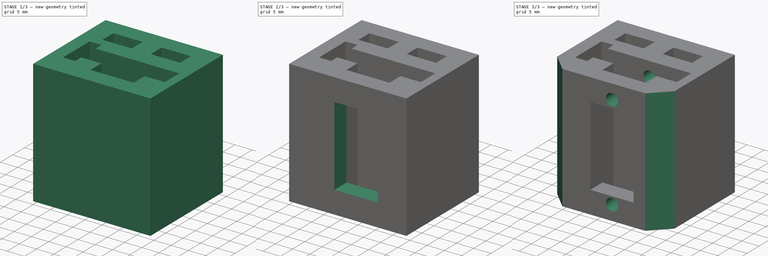
[diagram: build sequence overview — one tinted view per stage of 3, left to right]
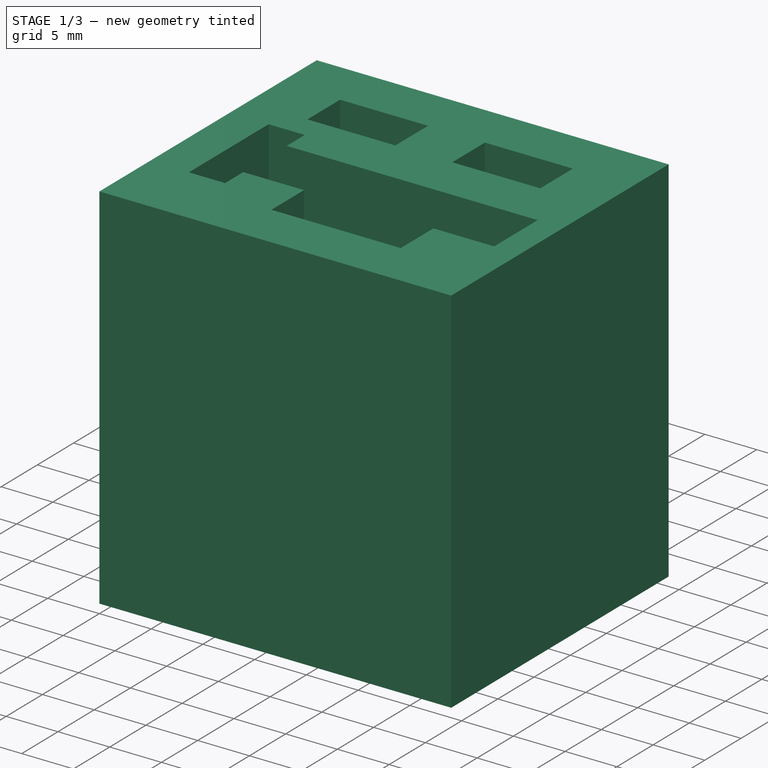
[diagram: stage 1 of 3 — iso view after this stage's code; geometry added in this stage tinted green]
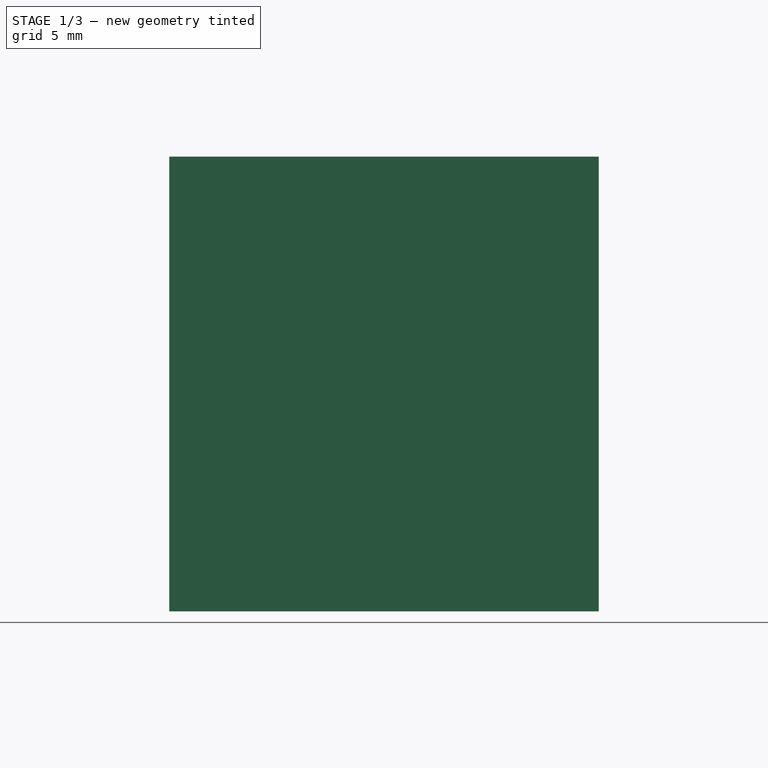
[diagram: stage 1 of 3 — front view after this stage's code; geometry added in this stage tinted green]
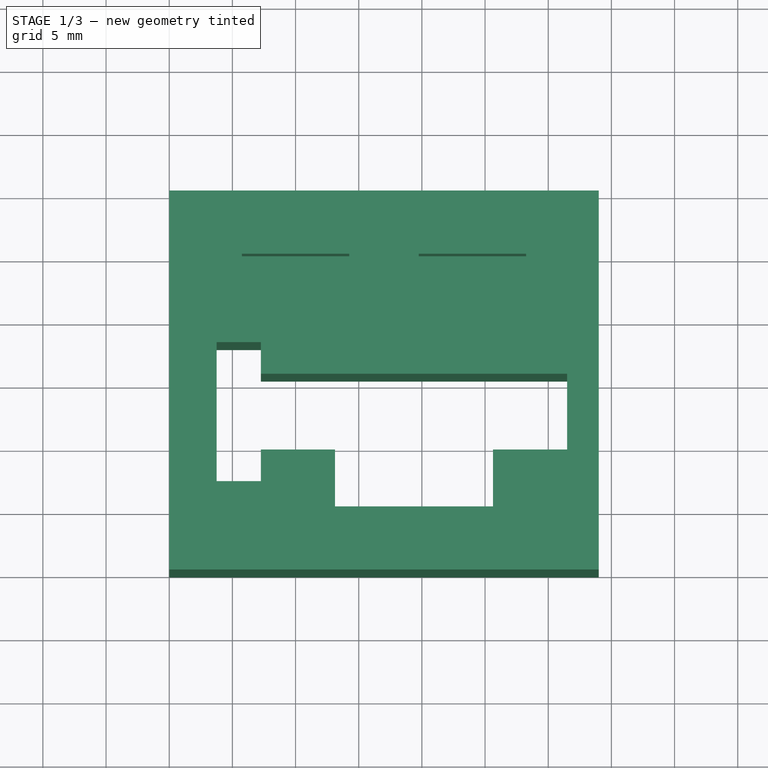
[diagram: stage 1 of 3 — top view after this stage's code; geometry added in this stage tinted green]
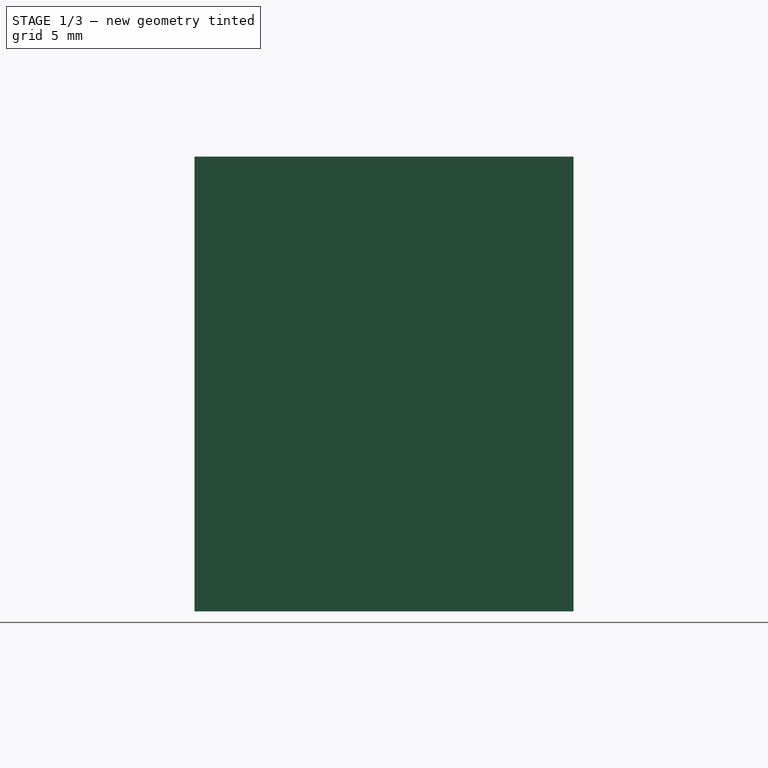
[diagram: stage 1 of 3 — right view after this stage's code; geometry added in this stage tinted green]
FCSTD DOCUMENT  (FreeCAD 0.19R)
Label: z-axis-motor-mount
License: All rights reserved
LicenseURL: http://en.wikipedia.org/wiki/All_rights_reserved
objects: Sketcher::SketchObject×5, PartDesign::Pocket×4, PartDesign::Pad×1, PartDesign::Chamfer×1, PartDesign::Body×1
note: 18 computed .brp shape members not serialized (recipe doc carries the construction recipe); baked Part::Feature solids carry a one-line shape summary decoded from their .brp

FEATURE [Sketcher::SketchObject] Sketch
  FullyConstrained = true
  MapMode = 5
  Support = -> [XY_Plane]
  sketch-geometry (22):
    g0: LineSegment StartX=34 StartY=0 StartZ=0 EndX=34 EndY=30 EndZ=0
    g1: LineSegment StartX=34 StartY=30 StartZ=0 EndX=0 EndY=30 EndZ=0
    g2: LineSegment StartX=0 StartY=30 StartZ=0 EndX=0 EndY=0 EndZ=0
    g3: LineSegment StartX=3.75 StartY=18 StartZ=0 EndX=3.75 EndY=7 EndZ=0
    g4: LineSegment StartX=3.75 StartY=7 StartZ=0 EndX=7.25 EndY=7 EndZ=0
    g5: LineSegment StartX=7.25 StartY=7 StartZ=0 EndX=7.25 EndY=9.5 EndZ=0
    g6: LineSegment StartX=3.75 StartY=18 StartZ=0 EndX=7.25 EndY=18 EndZ=0
    g7: LineSegment StartX=7.25 StartY=18 StartZ=0 EndX=7.25 EndY=15.5 EndZ=0
    g8: LineSegment StartX=0 StartY=20.5 StartZ=0 EndX=34 EndY=20.5 EndZ=0
    g9: GeomPoint X=17 Y=20.5 Z=0
    g10: LineSegment StartX=7.25 StartY=15.5 StartZ=0 EndX=31.5 EndY=15.5 EndZ=0
    g11: LineSegment StartX=31.5 StartY=15.5 StartZ=0 EndX=31.5 EndY=9.5 EndZ=0
    g12: LineSegment StartX=31.5 StartY=9.5 StartZ=0 EndX=7.25 EndY=9.5 EndZ=0
    g13: LineSegment StartX=0 StartY=0 StartZ=0 EndX=34 EndY=0 EndZ=0
    g14: GeomPoint X=19.375 Y=9.5 Z=0
    g15: LineSegment StartX=7.25 StartY=9.5 StartZ=0 EndX=13.125 EndY=9.5 EndZ=0
    g16: LineSegment StartX=13.125 StartY=9.5 StartZ=0 EndX=13.125 EndY=5 EndZ=0
    g17: LineSegment StartX=13.125 StartY=5 StartZ=0 EndX=25.625 EndY=5 EndZ=0
    g18: LineSegment StartX=25.625 StartY=5 StartZ=0 EndX=25.625 EndY=9.5 EndZ=0
    g19: LineSegment StartX=25.625 StartY=9.5 StartZ=0 EndX=31.5 EndY=9.5 EndZ=0
    g20: GeomPoint X=19.375 Y=5 Z=0
    g21: LineSegment StartX=19.375 StartY=5 StartZ=0 EndX=19.375 EndY=9.5 EndZ=0
  constraints (59):
    c: Coincident(g0,g1)
    c: Coincident(g1,g2)
    c: Horizontal(g1)
    c: Vertical(g0)
    c: Vertical(g2)
    c: DistanceX(g1,g1) = 34
    c: Vertical(g3)
    c: Coincident(g4,g3)
    c: Horizontal(g4)
    c: Coincident(g5,g4)
    c: Vertical(g5)
    c: Coincident(g6,g3)
    c: Horizontal(g6)
    c: Coincident(g7,g6)
    c: Vertical(g7)
    c: PointOnObject(g2,g-2)
    c: DistanceX(g6,g6) = 3.5
    c: DistanceY(g3,g3) = 11
    c: Equal(g7,g5)
    c: DistanceY(g5,g7) = 6
    c: Horizontal(g8)
    c: Symmetric(g8,g8,g9)
    c: DistanceX(g3,g9) = 13.25
    c: DistanceY(g3,g8) = 2.5
    c: PointOnObject(g2,g-1)
    c: Coincident(g10,g7)
    c: Horizontal(g10)
    c: Coincident(g11,g10)
    c: Vertical(g11)
    c: Coincident(g12,g11)
    c: Coincident(g12,g5)
    c: DistanceX(g10,g0) = 2.5
    c: Equal(g4,g6)
    c: Coincident(g13,g2)
    c: Coincident(g13,g0)
    c: Horizontal(g13)
    c: PointOnObject(g8,g0)
    c: PointOnObject(g8,g2)
    c: DistanceY(g8,g1) = 9.5
    c: DistanceY(g0,g11) = 9.5
    c: Symmetric(g11,g5,g14)
    c: Coincident(g15,g5)
    c: PointOnObject(g15,g12)
    c: Horizontal(g15)
    c: Coincident(g16,g15)
    c: Coincident(g17,g16)
    c: Horizontal(g17)
    c: Coincident(g18,g17)
    c: PointOnObject(g18,g12)
    c: Vertical(g18)
    c: Coincident(g19,g18)
    c: Coincident(g19,g11)
    c: Vertical(g16)
    c: DistanceX(g17,g17) = 12.5
    c: Symmetric(g17,g16,g20)
    c: Coincident(g21,g20)
    c: Coincident(g21,g14)
    c: Vertical(g21)
    c: DistanceY(g18,g18) = 4.5
FEATURE [PartDesign::Pad] Pad
  Direction = (1,1,1)
  Length = 36
  Length2 = 100
  Profile = -> Sketch
  Type = 0
FEATURE [Sketcher::SketchObject] Sketch001
  FullyConstrained = true
  MapMode = 5
  Placement = pos=(0,0,36) rot=(0,0,1;0rad)
  Support = -> [Pad]
  sketch-geometry (12):
    g0: LineSegment StartX=19.75 StartY=25 StartZ=0 EndX=28.25 EndY=25 EndZ=0
    g1: LineSegment StartX=28.25 StartY=25 StartZ=0 EndX=28.25 EndY=20.5 EndZ=0
    g2: LineSegment StartX=28.25 StartY=20.5 StartZ=0 EndX=19.75 EndY=20.5 EndZ=0
    g3: LineSegment StartX=19.75 StartY=20.5 StartZ=0 EndX=19.75 EndY=25 EndZ=0
    g4: LineSegment StartX=5.75 StartY=25 StartZ=0 EndX=14.25 EndY=25 EndZ=0
    g5: LineSegment StartX=14.25 StartY=25 StartZ=0 EndX=14.25 EndY=20.5 EndZ=0
    g6: LineSegment StartX=14.25 StartY=20.5 StartZ=0 EndX=5.75 EndY=20.5 EndZ=0
    g7: LineSegment StartX=5.75 StartY=20.5 StartZ=0 EndX=5.75 EndY=25 EndZ=0
    g8: LineSegment StartX=0 StartY=20.5 StartZ=0 EndX=34 EndY=20.5 EndZ=0
    g9: GeomPoint X=17 Y=20.5 Z=0
    g10: GeomPoint X=10 Y=20.5 Z=0
    g11: GeomPoint X=24 Y=20.5 Z=0
  constraints (30):
    c: Coincident(g0,g1)
    c: Coincident(g1,g2)
    c: Coincident(g2,g3)
    c: Coincident(g3,g0)
    c: Horizontal(g0)
    c: Horizontal(g2)
    c: Vertical(g1)
    c: Vertical(g3)
    c: Coincident(g4,g5)
    c: Coincident(g5,g6)
    c: Coincident(g6,g7)
    c: Coincident(g7,g4)
    c: Horizontal(g4)
    c: Horizontal(g6)
    c: Vertical(g5)
    c: Vertical(g7)
    c: Equal(g6,g2)
    c: Equal(g7,g3)
    c: DistanceY(g7,g7) = 4.5
    c: DistanceX(g6,g6) = 8.5
    c: PointOnObject(g8,g-2)
    c: Horizontal(g8)
    c: DistanceY(g-1,g8) = 20.5
    c: DistanceX(g8,g8) = 34
    c: PointOnObject(g6,g8)
    c: Symmetric(g8,g8,g9)
    c: DistanceX(g10,g9) = 7
    c: Symmetric(g11,g10,g9)
    c: Symmetric(g5,g6,g10)
    c: Symmetric(g1,g2,g11)
FEATURE [PartDesign::Pocket] Pocket
  BaseFeature = -> Pad
  Length = 11.75
  Length2 = 100
  Profile = -> Sketch001
  Type = 0
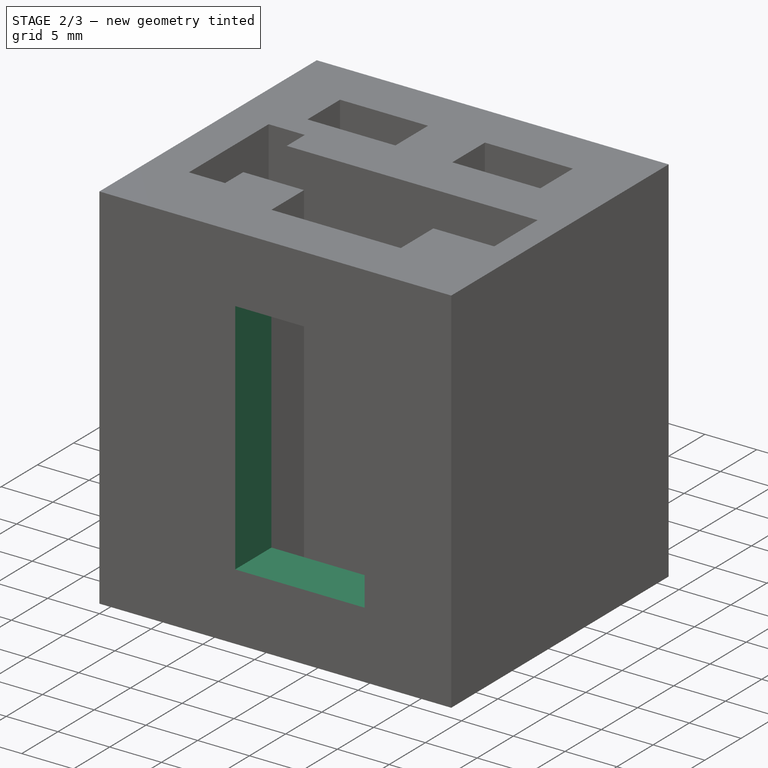
[diagram: stage 2 of 3 — iso view after this stage's code; geometry added in this stage tinted green]
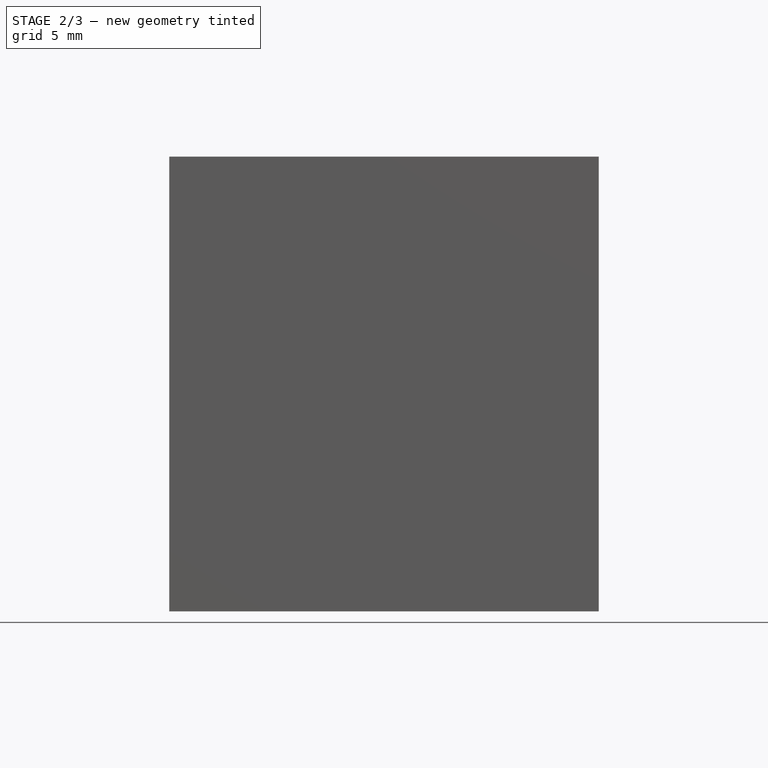
[diagram: stage 2 of 3 — front view after this stage's code; geometry added in this stage tinted green]
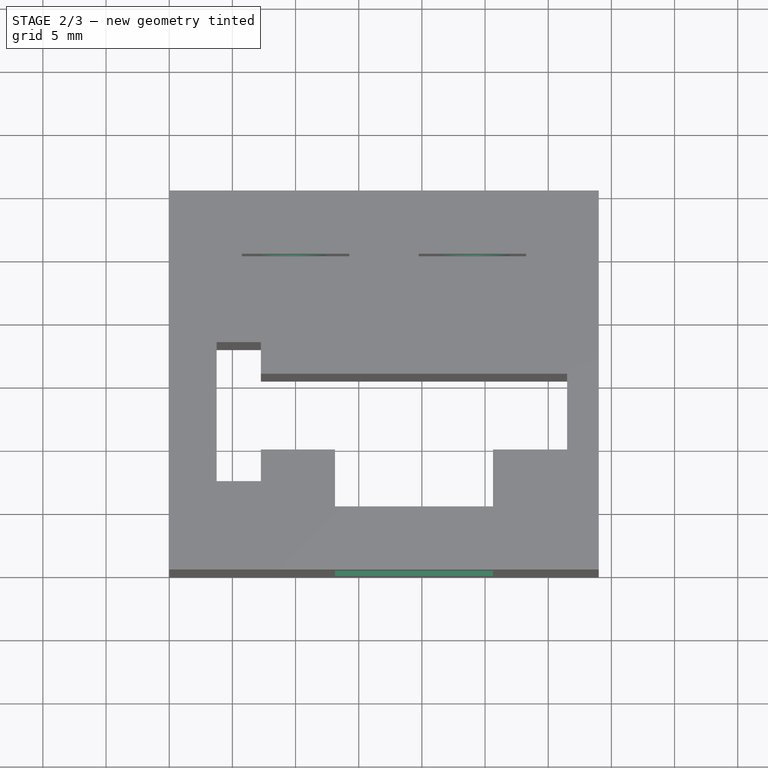
[diagram: stage 2 of 3 — top view after this stage's code; geometry added in this stage tinted green]
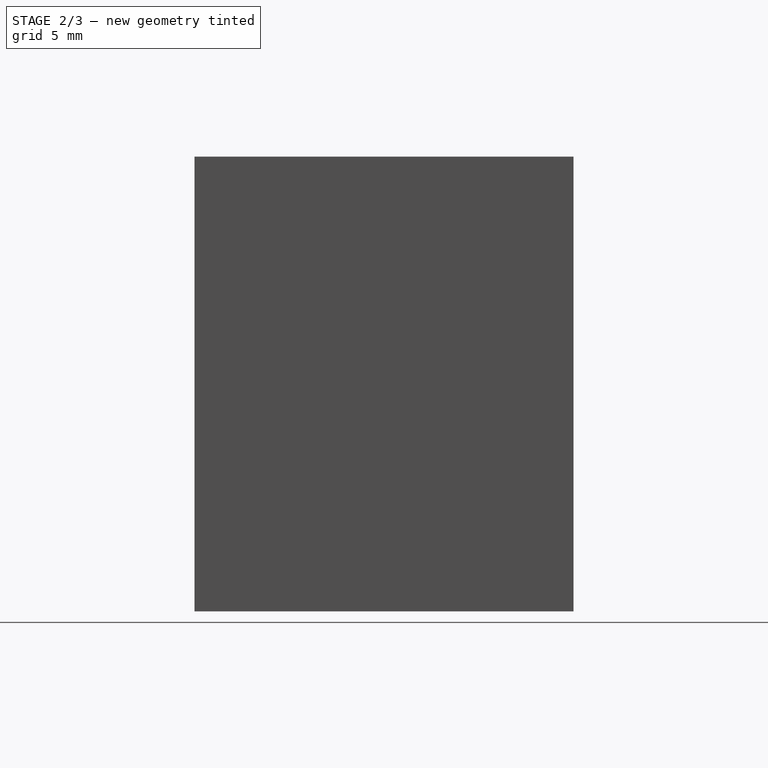
[diagram: stage 2 of 3 — right view after this stage's code; geometry added in this stage tinted green]
FEATURE [Sketcher::SketchObject] Sketch002
  FullyConstrained = true
  MapMode = 5
  Placement = pos=(0,30,0) rot=(0,0.707107,0.707107;3.14159rad)
  Support = -> [Pocket]
  sketch-geometry (6):
    g0: Circle CenterX=-9.75 CenterY=29 CenterZ=0 NormalX=0 NormalY=0 NormalZ=1 AngleXU=0 Radius=2.75
    g1: Circle CenterX=-24.25 CenterY=29 CenterZ=0 NormalX=0 NormalY=0 NormalZ=1 AngleXU=0 Radius=2.75
    g2: LineSegment StartX=0 StartY=36 StartZ=0 EndX=-34 EndY=36 EndZ=0
    g3: LineSegment StartX=-24.25 StartY=36 StartZ=0 EndX=-24.25 EndY=29 EndZ=0
    g4: LineSegment StartX=-9.75 StartY=36 StartZ=0 EndX=-9.75 EndY=29 EndZ=0
    g5: GeomPoint X=-17 Y=36 Z=0
  constraints (16):
    c: PointOnObject(g2,g-2)
    c: Horizontal(g2)
    c: PointOnObject(g3,g2)
    c: Coincident(g3,g1)
    c: Coincident(g4,g0)
    c: Vertical(g4)
    c: Vertical(g3)
    c: DistanceY(g-1,g2) = 36
    c: Equal(g1,g0)
    c: Diameter(g0) = 5.5
    c: Equal(g3,g4)
    c: Symmetric(g2,g2,g5)
    c: Symmetric(g4,g3,g5)
    c: DistanceX(g5,g4) = 7.25
    c: DistanceY(g4,g4) = 7
    c: DistanceX(g2,g2) = 34
FEATURE [PartDesign::Pocket] Pocket001
  BaseFeature = -> Pocket
  Length = 5
  Length2 = 100
  Profile = -> Sketch002
  Type = 0
FEATURE [Sketcher::SketchObject] Sketch003
  FullyConstrained = true
  MapMode = 5
  Placement = pos=(0,0,0) rot=(1,0,0;1.5708rad)
  Support = -> [Pocket001]
  sketch-geometry (8):
    g0: LineSegment StartX=19.375 StartY=0 StartZ=0 EndX=19.375 EndY=36 EndZ=0
    g1: LineSegment StartX=13.125 StartY=29.5 StartZ=0 EndX=25.625 EndY=29.5 EndZ=0
    g2: LineSegment StartX=25.625 StartY=29.5 StartZ=0 EndX=25.625 EndY=6.5 EndZ=0
    g3: LineSegment StartX=25.625 StartY=6.5 StartZ=0 EndX=13.125 EndY=6.5 EndZ=0
    g4: LineSegment StartX=13.125 StartY=6.5 StartZ=0 EndX=13.125 EndY=29.5 EndZ=0
    g5: GeomPoint X=19.375 Y=29.5 Z=0
    g6: GeomPoint X=19.375 Y=18 Z=0
    g7: GeomPoint X=19.375 Y=6.5 Z=0
  constraints (19):
    c: Vertical(g0)
    c: Coincident(g1,g2)
    c: Coincident(g2,g3)
    c: Coincident(g3,g4)
    c: Coincident(g4,g1)
    c: Horizontal(g1)
    c: Horizontal(g3)
    c: Vertical(g2)
    c: Vertical(g4)
    c: DistanceX(g-1,g0) = 19.375
    c: PointOnObject(g5,g0)
    c: Symmetric(g1,g1,g5)
    c: DistanceY(g0,g0) = 36
    c: Symmetric(g0,g0,g6)
    c: PointOnObject(g7,g3)
    c: Symmetric(g5,g7,g6)
    c: DistanceX(g1,g1) = 12.5
    c: DistanceY(g2,g2) = 23
    c: PointOnObject(g0,g-1)
FEATURE [PartDesign::Pocket] Pocket002
  BaseFeature = -> Pocket001
  Length = 5
  Length2 = 100
  Profile = -> Sketch003
  Type = 2
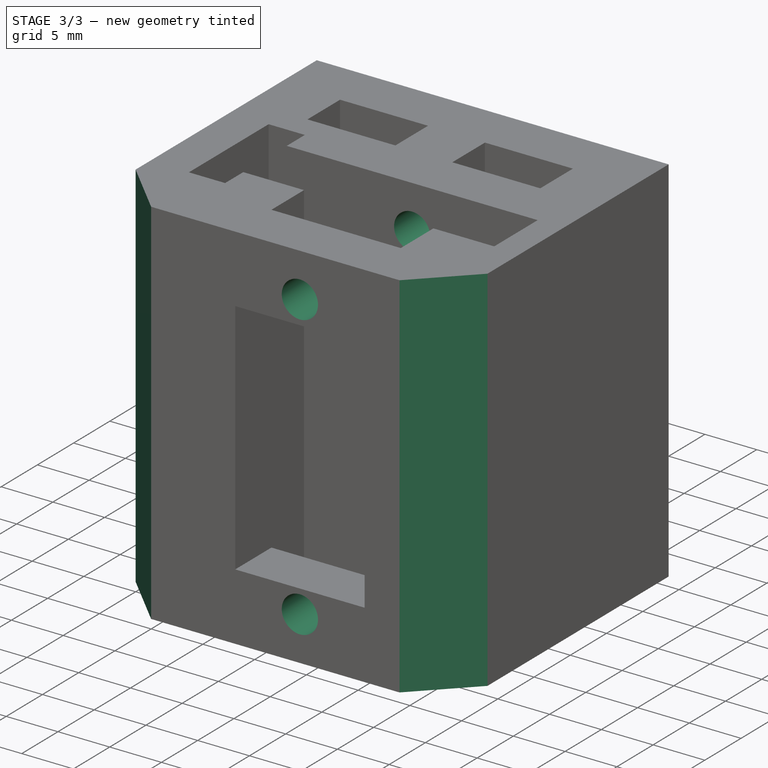
[diagram: stage 3 of 3 — iso view after this stage's code; geometry added in this stage tinted green]
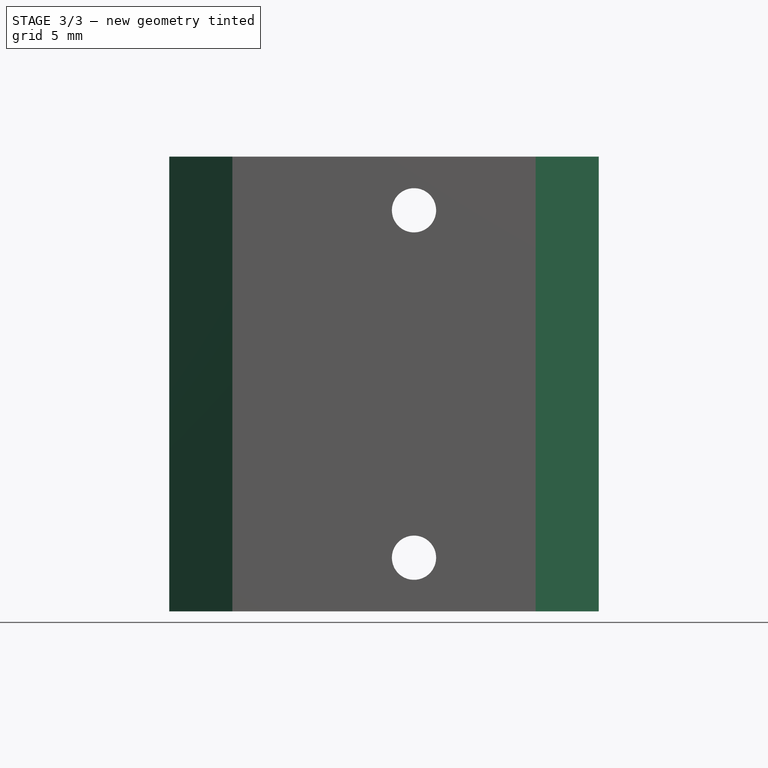
[diagram: stage 3 of 3 — front view after this stage's code; geometry added in this stage tinted green]
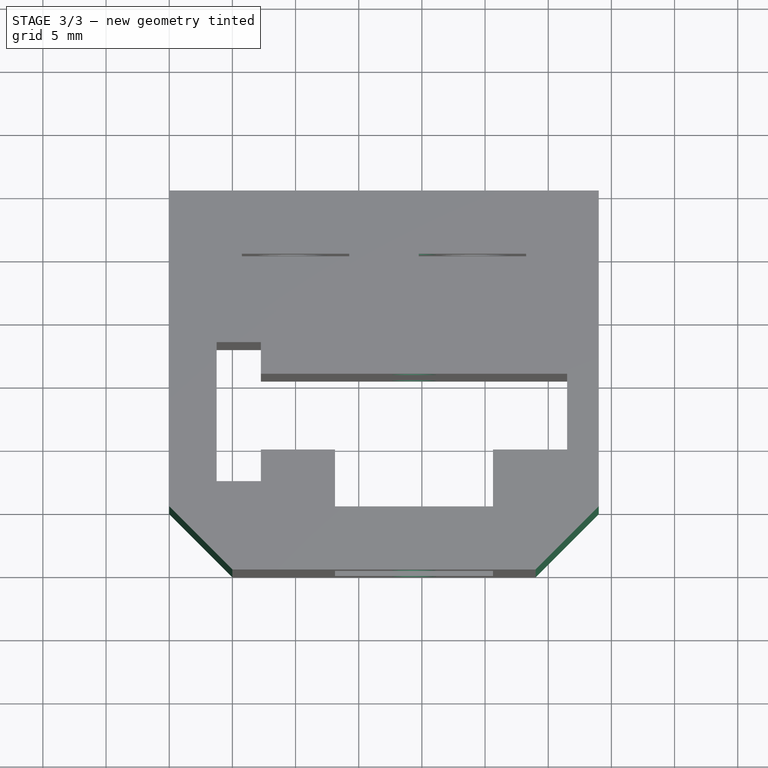
[diagram: stage 3 of 3 — top view after this stage's code; geometry added in this stage tinted green]
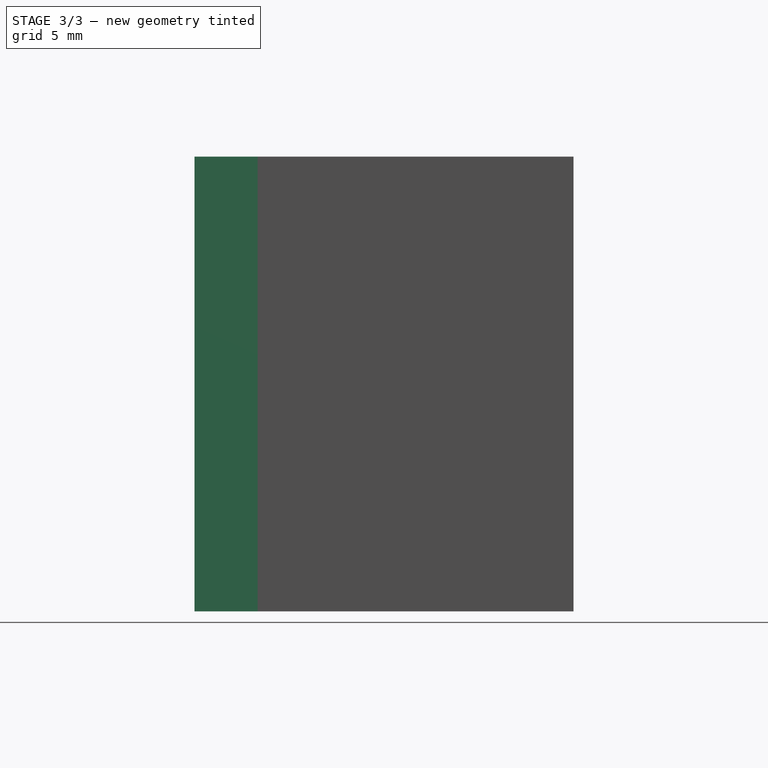
[diagram: stage 3 of 3 — right view after this stage's code; geometry added in this stage tinted green]
FEATURE [Sketcher::SketchObject] Sketch004
  FullyConstrained = true
  MapMode = 5
  Placement = pos=(0,30,0) rot=(0,0.707107,0.707107;3.14159rad)
  Support = -> [Pocket002]
  sketch-geometry (4):
    g0: LineSegment StartX=-19.375 StartY=36 StartZ=0 EndX=-19.375 EndY=0 EndZ=0
    g1: GeomPoint X=-19.375 Y=18 Z=0
    g2: Circle CenterX=-19.375 CenterY=31.75 CenterZ=0 NormalX=0 NormalY=0 NormalZ=1 AngleXU=0 Radius=1.75
    g3: Circle CenterX=-19.375 CenterY=4.25 CenterZ=0 NormalX=0 NormalY=0 NormalZ=1 AngleXU=0 Radius=1.75
  constraints (10):
    c: Vertical(g0)
    c: PointOnObject(g2,g0)
    c: Symmetric(g0,g0,g1)
    c: Symmetric(g2,g3,g1)
    c: Equal(g2,g3)
    c: Diameter(g2) = 3.5
    c: DistanceY(g1,g2) = 13.75
    c: DistanceX(g0,g-1) = 19.375
    c: DistanceY(g0,g0) = 36
    c: PointOnObject(g0,g-1)
FEATURE [PartDesign::Pocket] Pocket003
  BaseFeature = -> Pocket002
  Length = 5
  Length2 = 100
  Profile = -> Sketch004
  Type = 1
FEATURE [PartDesign::Chamfer] Chamfer
  Angle = 45
  Base = -> Pocket003 [Edge5,Edge1]
  BaseFeature = -> Pocket003
  ChamferType = 0
  FlipDirection = false
  Size = 5
  Size2 = 1
  SupportTransform = false
FEATURE [PartDesign::Body] Body
  Group = -> [Sketch,Pad,Sketch001,Pocket,Sketch002,Pocket001,Sketch003,Pocket002,Sketch004,Pocket003,Chamfer]
  Origin = -> Origin
  Tip = -> Chamfer
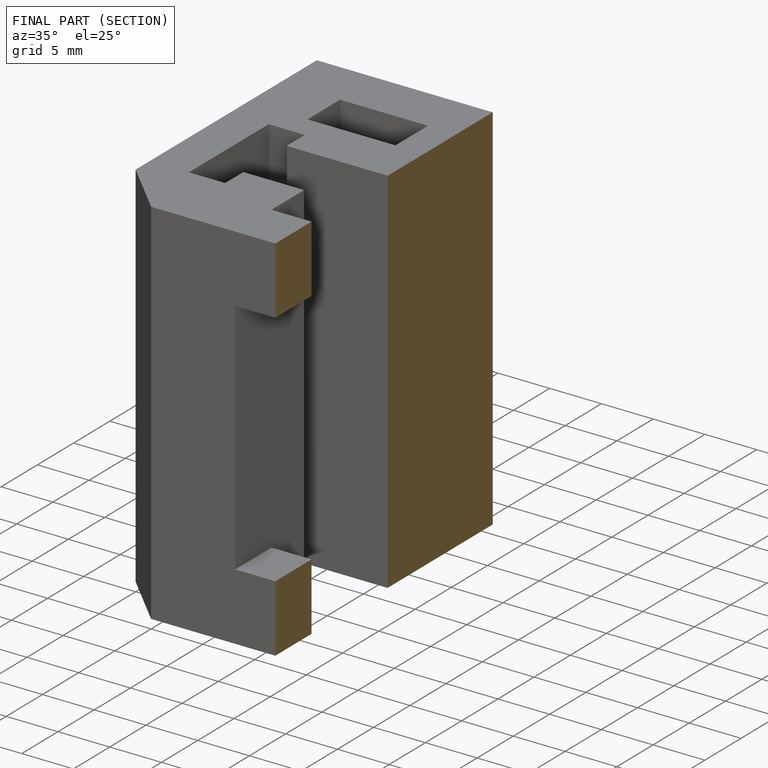
[diagram: finished part — half-section view (interior)]
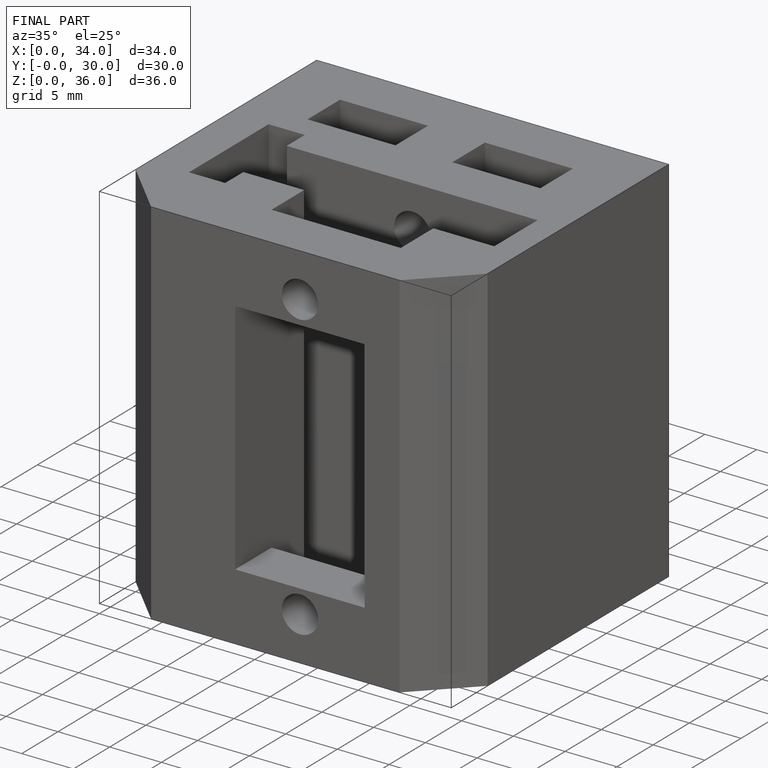
[diagram: finished part — iso view with bounding-box wireframe]
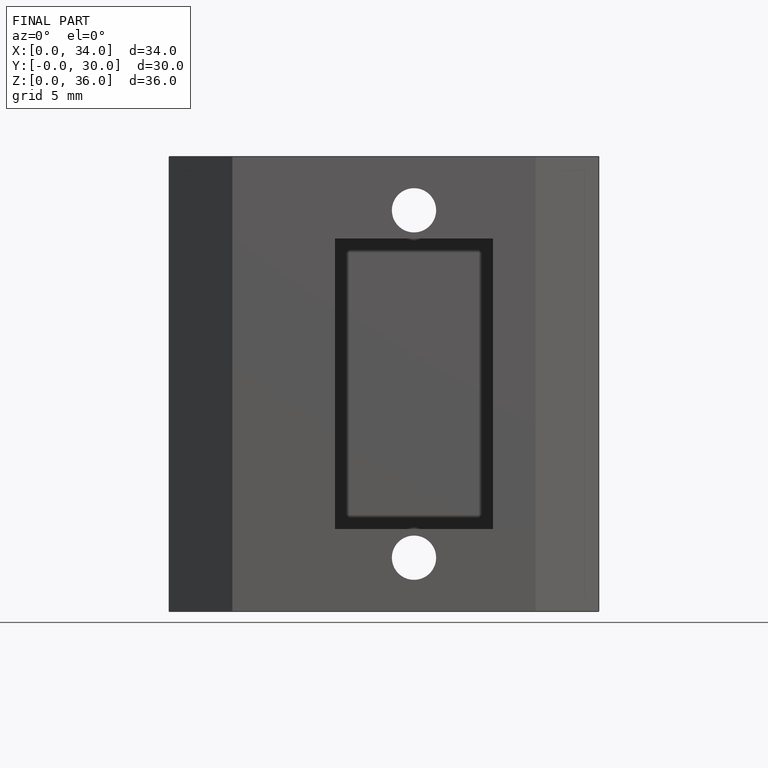
[diagram: finished part — front view with bounding-box wireframe]
